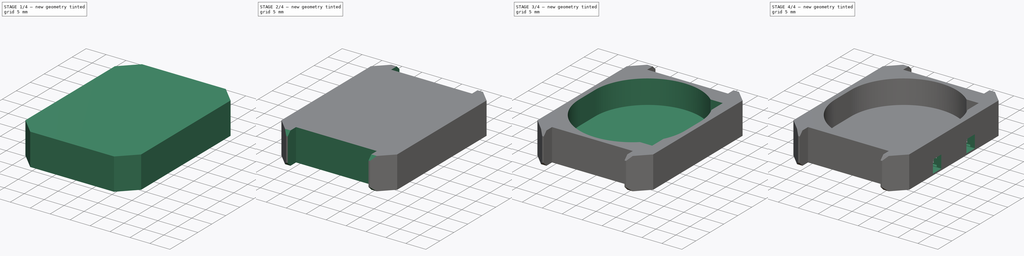
[diagram: build sequence overview — one tinted view per stage of 4, left to right]
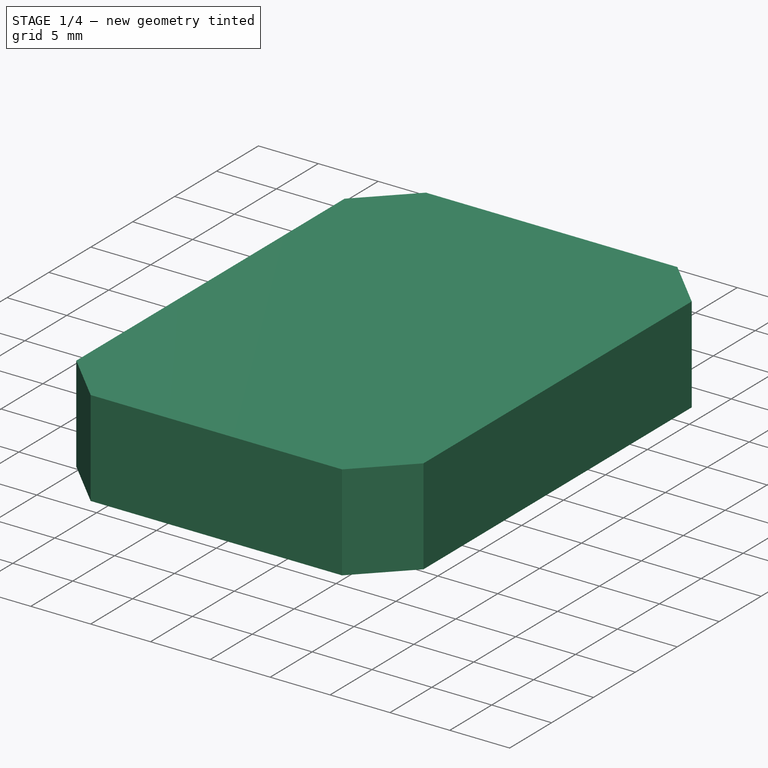
[diagram: stage 1 of 4 — iso view after this stage's code; geometry added in this stage tinted green]
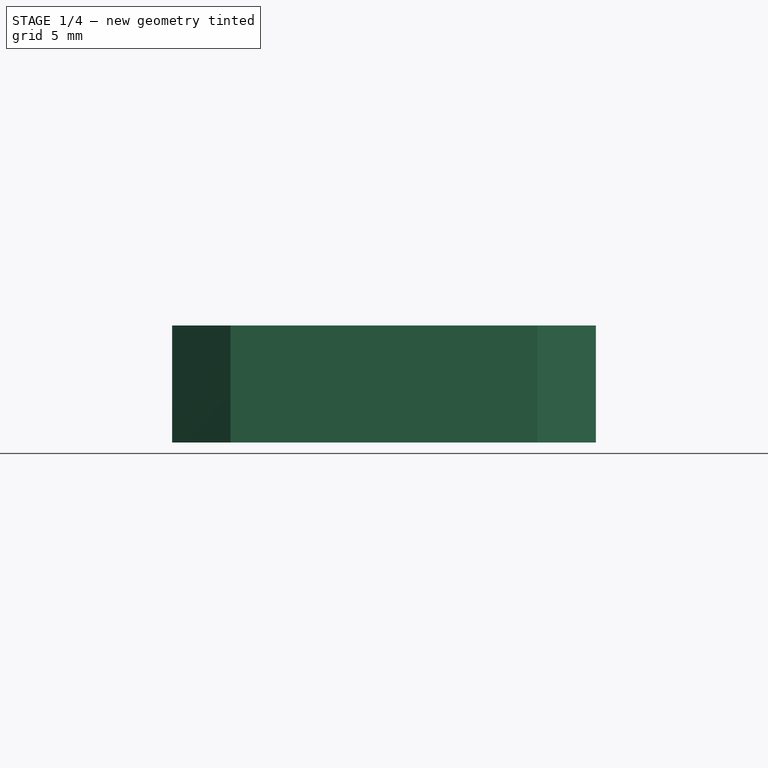
[diagram: stage 1 of 4 — front view after this stage's code; geometry added in this stage tinted green]
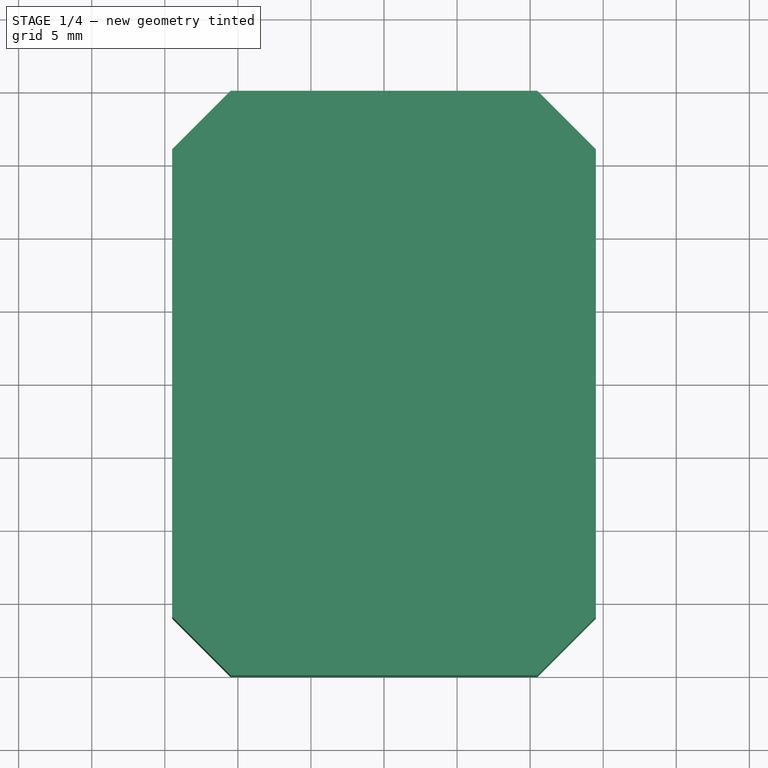
[diagram: stage 1 of 4 — top view after this stage's code; geometry added in this stage tinted green]
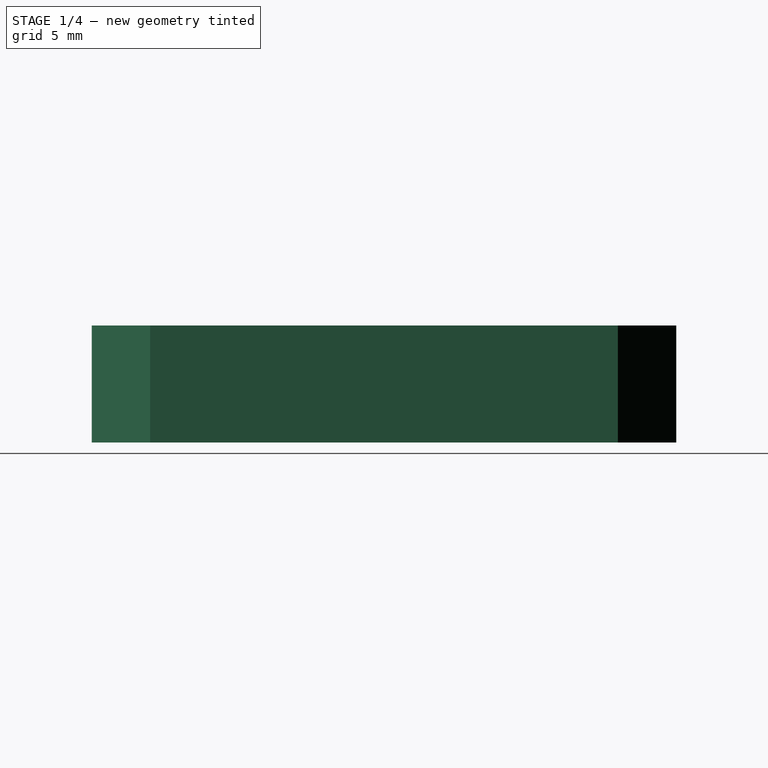
[diagram: stage 1 of 4 — right view after this stage's code; geometry added in this stage tinted green]
FCSTD DOCUMENT  (FreeCAD 1.1R20260325 (Git shallow))
Label: OutlineA3
License: All rights reserved
LicenseURL: https://en.wikipedia.org/wiki/All_rights_reserved
objects: Sketcher::SketchObject×9, PartDesign::Pocket×6, PartDesign::Chamfer×2, App::Point×1, PartDesign::Pad×1, Part::DatumPlane×1, PartDesign::Body×1
note: 46 computed .brp shape members not serialized (recipe doc carries the construction recipe); baked Part::Feature solids carry a one-line shape summary decoded from their .brp

FEATURE [App::Point] Origin001
  Role = Origin
FEATURE [Sketcher::SketchObject] Sketch
  ArcFitTolerance = 1e-06
  AttachmentSupport = -> [Origin]
  ExternalTypes = [0]
  FullyConstrained = true
  MakeInternals = false
  MapMode = 5
  _ExternalGeoVersion = 1
  sketch-geometry (11):
    g0: ArcOfCircle [constr] CenterX=0 CenterY=3 CenterZ=0 NormalX=0 NormalY=0 NormalZ=1 AngleXU=0 Radius=13 StartAngle=1e-16 EndAngle=3.14159
    g1: ArcOfCircle [constr] CenterX=0 CenterY=-3 CenterZ=0 NormalX=0 NormalY=0 NormalZ=1 AngleXU=0 Radius=13 StartAngle=3.14159 EndAngle=6.28319
    g2: LineSegment [constr] StartX=13 StartY=3 StartZ=0 EndX=13 EndY=-3 EndZ=0
    g3: LineSegment [constr] StartX=-13 StartY=3 StartZ=0 EndX=-13 EndY=-3 EndZ=0
    g4: GeomPoint X=0 Y=16 Z=0
    g5: GeomPoint X=0 Y=-16 Z=0
    g6: LineSegment StartX=-14.5 StartY=-20 StartZ=0 EndX=14.5 EndY=-20 EndZ=0
    g7: LineSegment StartX=14.5 StartY=-20 StartZ=0 EndX=14.5 EndY=20 EndZ=0
    g8: LineSegment StartX=14.5 StartY=20 StartZ=0 EndX=-14.5 EndY=20 EndZ=0
    g9: LineSegment StartX=-14.5 StartY=20 StartZ=0 EndX=-14.5 EndY=-20 EndZ=0
    g10: GeomPoint [constr] X=0 Y=0 Z=0
  constraints (25):
    c: Tangent(g0,g2) = 1.5708
    c: Tangent(g0,g3) = -1.5708
    c: Tangent(g1,g2) = 1.5708
    c: Tangent(g1,g3) = -1.5708
    c: Equal(g0,g1)
    c: Symmetric(g0,g1,g-1)
    c: PointOnObject(g0,g-2)
    c: PointOnObject(g4,g0)
    c: PointOnObject(g5,g1)
    c: PointOnObject(g4,g-2)
    c: PointOnObject(g5,g-2)
    c: DistanceY(g-1,g4) = 16
    c: DistanceX(g0,g0) = 26
    c: Coincident(g6,g7)
    c: Coincident(g7,g8)
    c: Coincident(g8,g9)
    c: Coincident(g9,g6)
    c: Horizontal(g6)
    c: Horizontal(g8)
    c: Vertical(g7)
    c: Vertical(g9)
    c: Symmetric(g8,g6,g10)
    c: Distance(g7,g9) = 29
    c: Distance(g6,g8) = 40
    c: Coincident(g10,g-1)
FEATURE [PartDesign::Pad] Pad
  Direction = (0,0,1)
  Length = 8
  Length2 = 10
  Profile = -> Sketch
  ReferenceAxis = -> Sketch [N_Axis]
  Refine = true
  SideType = 0
  Suppressed = false
  Type = 0
  Type2 = 0
FEATURE [PartDesign::Chamfer] Chamfer
  Angle = 45
  Base = -> Pad [Edge5,Edge2,Edge8,Edge1]
  BaseFeature = -> Pad
  ChamferType = 0
  FlipDirection = false
  Refine = true
  Size = 4
  Size2 = 1
  SupportTransform = false
  Suppressed = false
  UseAllEdges = false
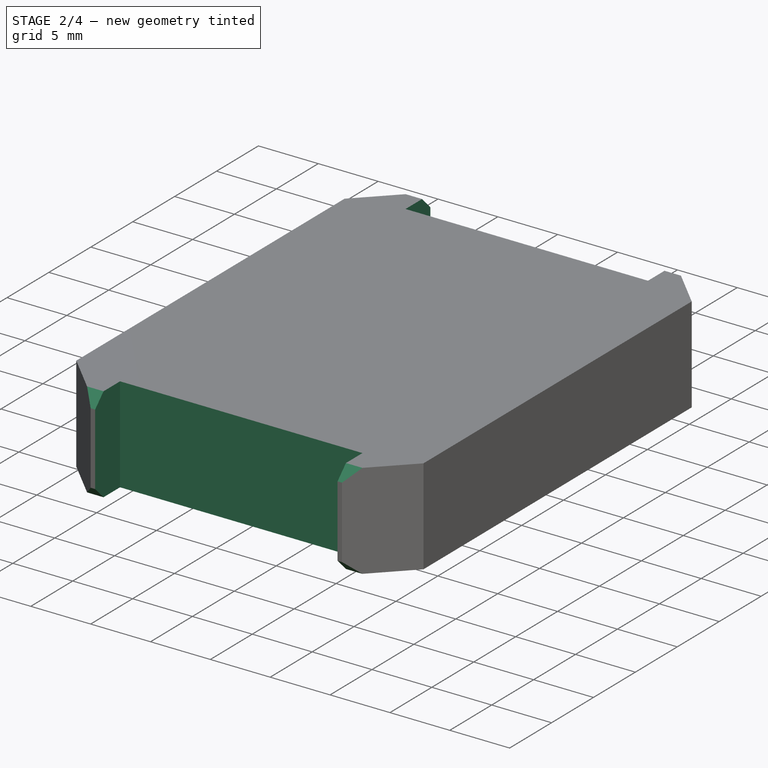
[diagram: stage 2 of 4 — iso view after this stage's code; geometry added in this stage tinted green]
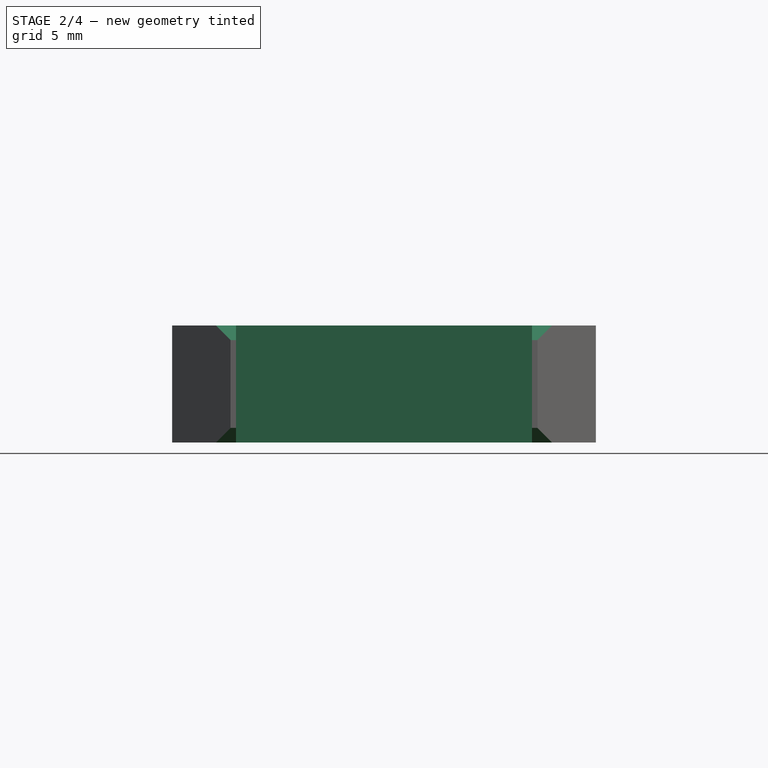
[diagram: stage 2 of 4 — front view after this stage's code; geometry added in this stage tinted green]
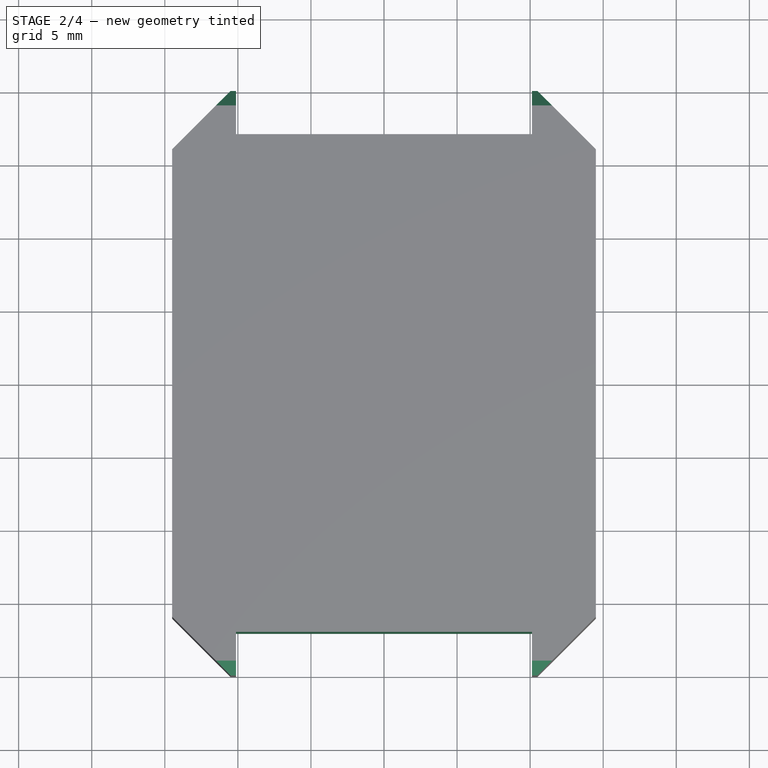
[diagram: stage 2 of 4 — top view after this stage's code; geometry added in this stage tinted green]
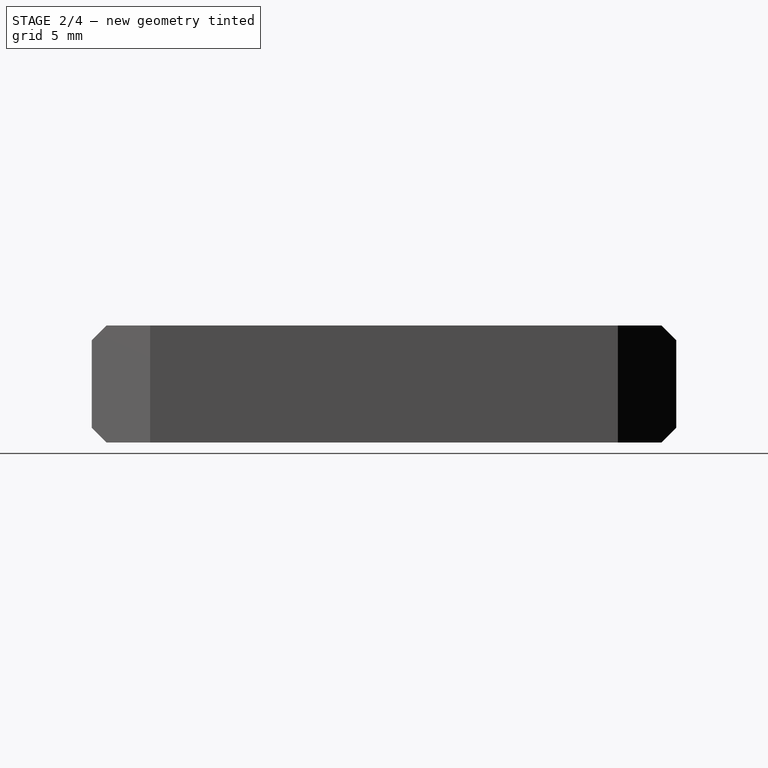
[diagram: stage 2 of 4 — right view after this stage's code; geometry added in this stage tinted green]
FEATURE [PartDesign::Chamfer] Chamfer001
  Angle = 45
  Base = -> Chamfer [Edge1,Edge4,Edge11,Edge20]
  BaseFeature = -> Chamfer
  ChamferType = 0
  FlipDirection = false
  Refine = true
  Size = 1
  Size2 = 1
  SupportTransform = false
  Suppressed = false
  UseAllEdges = false
FEATURE [Sketcher::SketchObject] Sketch001
  ArcFitTolerance = 1e-06
  AttachmentSupport = -> [Chamfer001]
  ExternalTypes = [0]
  FullyConstrained = false
  MakeInternals = false
  MapMode = 5
  Placement = pos=(0,0,8) rot=(0,0,1;0rad)
  _ExternalGeoVersion = 1
  sketch-geometry (10):
    g0: LineSegment StartX=-10.125 StartY=-37.0317 StartZ=0 EndX=10.125 EndY=-37.0317 EndZ=0
    g1: LineSegment StartX=10.125 StartY=-37.0317 StartZ=0 EndX=10.125 EndY=-17.0317 EndZ=0
    g2: LineSegment StartX=10.125 StartY=-17.0317 StartZ=0 EndX=-10.125 EndY=-17.0317 EndZ=0
    g3: LineSegment StartX=-10.125 StartY=-17.0317 StartZ=0 EndX=-10.125 EndY=-37.0317 EndZ=0
    g4: GeomPoint [constr] X=0 Y=-27.0317 Z=0
    g5: LineSegment StartX=-10.125 StartY=37.0317 StartZ=0 EndX=10.125 EndY=37.0317 EndZ=0
    g6: LineSegment StartX=10.125 StartY=37.0317 StartZ=0 EndX=10.125 EndY=17.0317 EndZ=0
    g7: LineSegment StartX=10.125 StartY=17.0317 StartZ=0 EndX=-10.125 EndY=17.0317 EndZ=0
    g8: LineSegment StartX=-10.125 StartY=17.0317 StartZ=0 EndX=-10.125 EndY=37.0317 EndZ=0
    g9: GeomPoint [constr] X=0 Y=27.0317 Z=0
  constraints (24):
    c: Coincident(g0,g1)
    c: Coincident(g1,g2)
    c: Coincident(g2,g3)
    c: Coincident(g3,g0)
    c: Horizontal(g0)
    c: Horizontal(g2)
    c: Vertical(g1)
    c: Vertical(g3)
    c: Symmetric(g2,g0,g4)
    c: Distance(g1,g3) = 20.25
    c: Distance(g0,g2) = 20
    c: PointOnObject(g4,g-2)
    c: Coincident(g5,g6)
    c: Coincident(g6,g7)
    c: Coincident(g7,g8)
    c: Coincident(g8,g5)
    c: Horizontal(g5)
    c: Horizontal(g7)
    c: Vertical(g6)
    c: Vertical(g8)
    c: Symmetric(g7,g5,g9)
    c: Distance(g6,g8) = 20.25
    c: Distance(g5,g7) = 20
    c: Symmetric(g9,g4,g-1)
FEATURE [PartDesign::Pocket] Pocket
  BaseFeature = -> Chamfer001
  Direction = (0,0,-1)
  Length = 15
  Length2 = 5
  Profile = -> Sketch001
  ReferenceAxis = -> Sketch001 [N_Axis]
  Refine = true
  SideType = 0
  Suppressed = false
  Type = 0
  Type2 = 0
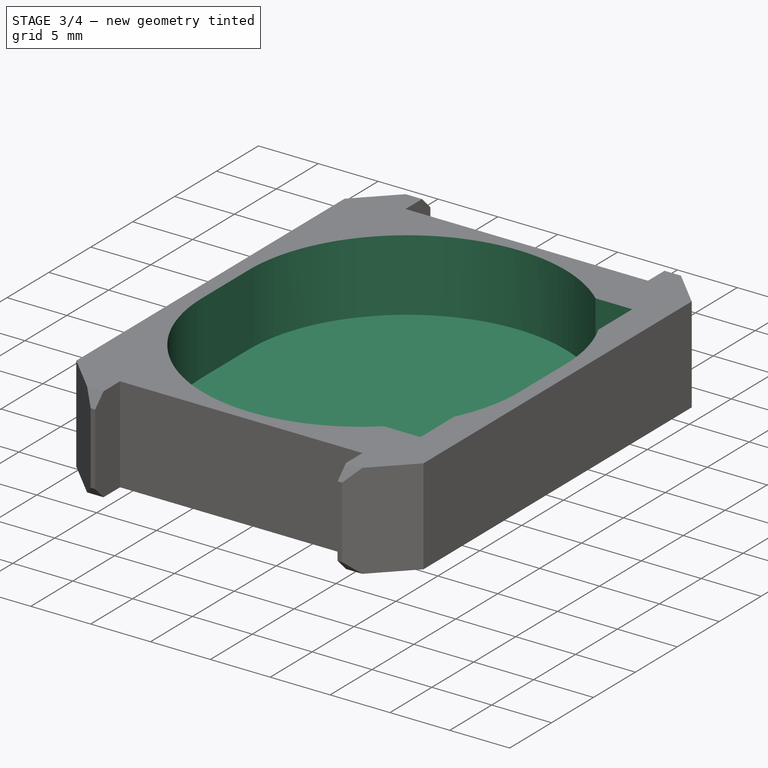
[diagram: stage 3 of 4 — iso view after this stage's code; geometry added in this stage tinted green]
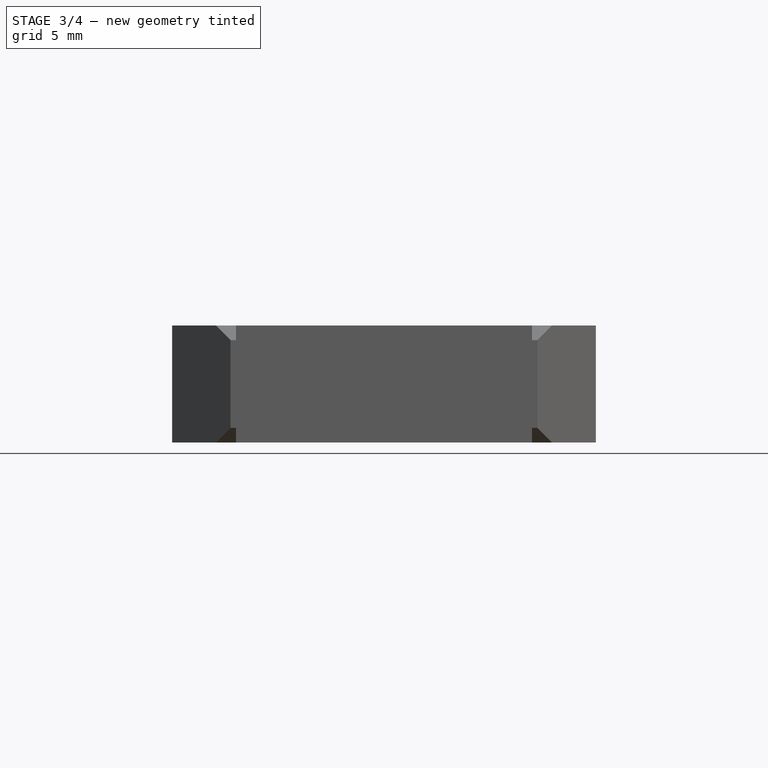
[diagram: stage 3 of 4 — front view after this stage's code; geometry added in this stage tinted green]
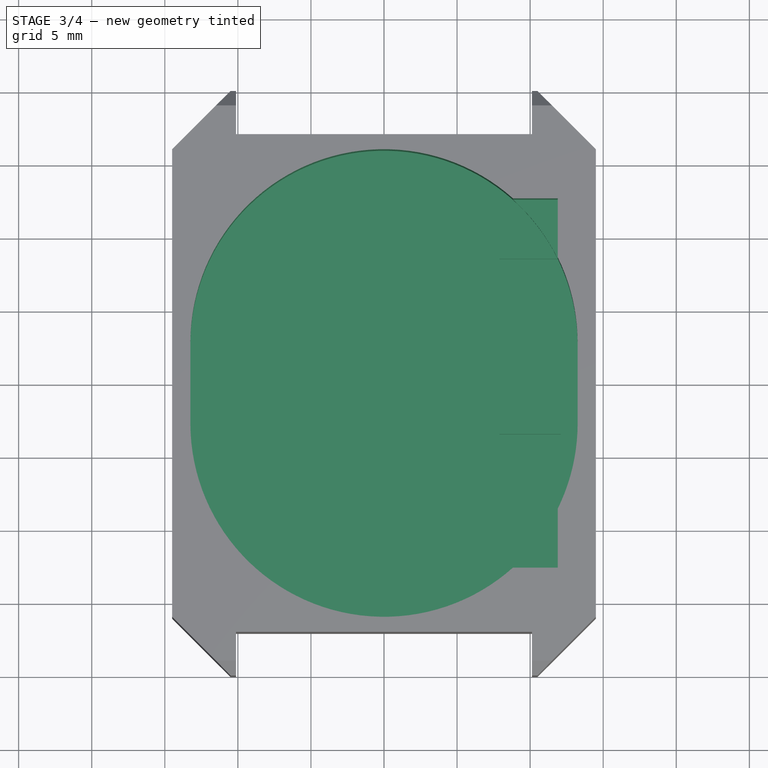
[diagram: stage 3 of 4 — top view after this stage's code; geometry added in this stage tinted green]
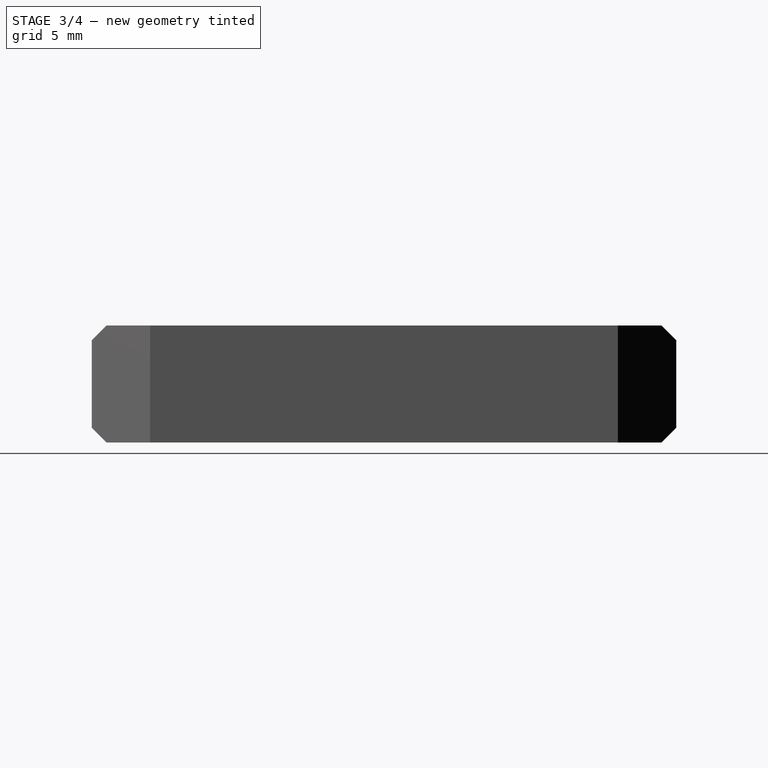
[diagram: stage 3 of 4 — right view after this stage's code; geometry added in this stage tinted green]
FEATURE [Sketcher::SketchObject] Sketch002
  ArcFitTolerance = 1e-06
  AttachmentSupport = -> [Pocket]
  ExternalTypes = [0]
  FullyConstrained = true
  MakeInternals = false
  MapMode = 5
  Placement = pos=(0,0,8) rot=(0,0,1;0rad)
  _ExternalGeoVersion = 1
  sketch-geometry (5):
    g0: ArcOfCircle CenterX=0 CenterY=2.75 CenterZ=0 NormalX=0 NormalY=0 NormalZ=1 AngleXU=0 Radius=13.25 StartAngle=-1.537e-13 EndAngle=3.14159
    g1: ArcOfCircle CenterX=0 CenterY=-2.75 CenterZ=0 NormalX=0 NormalY=0 NormalZ=1 AngleXU=0 Radius=13.25 StartAngle=3.14159 EndAngle=6.28319
    g2: LineSegment StartX=13.25 StartY=2.75 StartZ=0 EndX=13.25 EndY=-2.75 EndZ=0
    g3: LineSegment StartX=-13.25 StartY=2.75 StartZ=0 EndX=-13.25 EndY=-2.75 EndZ=0
    g4: GeomPoint X=0 Y=16 Z=0
  constraints (11):
    c: Tangent(g0,g2) = 1.5708
    c: Tangent(g0,g3) = -1.5708
    c: Tangent(g1,g2) = 1.5708
    c: Tangent(g1,g3) = -1.5708
    c: Equal(g0,g1)
    c: Symmetric(g0,g1,g-1)
    c: PointOnObject(g4,g0)
    c: Vertical(g4,g0)
    c: DistanceX(g0,g0) = 26.5
    c: Distance(g4,g-1) = 16
    c: PointOnObject(g4,g-2)
FEATURE [PartDesign::Pocket] Pocket001
  BaseFeature = -> Pocket
  Direction = (0,0,-1)
  Length = 6
  Length2 = 5
  Profile = -> Sketch002
  ReferenceAxis = -> Sketch002 [N_Axis]
  Refine = true
  SideType = 0
  Suppressed = false
  Type = 0
  Type2 = 0
FEATURE [Sketcher::SketchObject] Sketch003
  ArcFitTolerance = 1e-06
  AttachmentSupport = -> [Pocket001]
  ExternalGeometry = -> [Pocket001]
  ExternalTypes = [0,0]
  FullyConstrained = false
  MakeInternals = false
  MapMode = 5
  Placement = pos=(0,0,8) rot=(0,0,1;0rad)
  _ExternalGeoVersion = 1
  sketch-geometry (5):
    g0: LineSegment StartX=-5.70489 StartY=-12.6332 StartZ=0 EndX=11.8888 EndY=-12.6332 EndZ=0
    g1: LineSegment StartX=11.8888 StartY=-12.6332 StartZ=0 EndX=11.8888 EndY=12.6332 EndZ=0
    g2: LineSegment StartX=11.8888 StartY=12.6332 StartZ=0 EndX=-5.70489 EndY=12.6332 EndZ=0
    g3: LineSegment StartX=-5.70489 StartY=12.6332 StartZ=0 EndX=-5.70489 EndY=-12.6332 EndZ=0
    g4: GeomPoint [constr] X=3.09196 Y=0 Z=0
  constraints (10):
    c: Coincident(g0,g1)
    c: Coincident(g1,g2)
    c: Coincident(g2,g3)
    c: Coincident(g3,g0)
    c: Horizontal(g0)
    c: Horizontal(g2)
    c: Vertical(g1)
    c: Vertical(g3)
    c: Symmetric(g2,g0,g4)
    c: PointOnObject(g4,g-1)
FEATURE [PartDesign::Pocket] Pocket002
  BaseFeature = -> Pocket001
  Direction = (0,0,-1)
  Length = 5
  Length2 = 5
  Profile = -> Sketch003
  ReferenceAxis = -> Sketch003 [N_Axis]
  Refine = true
  SideType = 0
  Suppressed = false
  Type = 0
  Type2 = 0
FEATURE [Sketcher::SketchObject] Sketch004
  ArcFitTolerance = 1e-06
  AttachmentSupport = -> [Pocket002]
  ExternalGeometry = -> [Pocket002]
  ExternalTypes = [0]
  FullyConstrained = false
  MakeInternals = false
  MapMode = 5
  Placement = pos=(0,0,2) rot=(0,0,1;0rad)
  _ExternalGeoVersion = 1
  sketch-geometry (12):
    g0: LineSegment [constr] StartX=10 StartY=16.8719 StartZ=0 EndX=10 EndY=-16.8719 EndZ=0
    g1: GeomPoint [constr] X=10 Y=0 Z=0
    g2: LineSegment StartX=7.9 StartY=-8.6 StartZ=0 EndX=12.1 EndY=-8.6 EndZ=0
    g3: LineSegment StartX=12.1 StartY=-8.6 StartZ=0 EndX=12.1 EndY=-3.4 EndZ=0
    g4: LineSegment StartX=12.1 StartY=-3.4 StartZ=0 EndX=7.9 EndY=-3.4 EndZ=0
    g5: LineSegment StartX=7.9 StartY=-3.4 StartZ=0 EndX=7.9 EndY=-8.6 EndZ=0
    g6: GeomPoint [constr] X=10 Y=-6 Z=0
    g7: LineSegment StartX=7.9 StartY=8.6 StartZ=0 EndX=12.1 EndY=8.6 EndZ=0
    g8: LineSegment StartX=12.1 StartY=8.6 StartZ=0 EndX=12.1 EndY=3.4 EndZ=0
    g9: LineSegment StartX=12.1 StartY=3.4 StartZ=0 EndX=7.9 EndY=3.4 EndZ=0
    g10: LineSegment StartX=7.9 StartY=3.4 StartZ=0 EndX=7.9 EndY=8.6 EndZ=0
    g11: GeomPoint [constr] X=10 Y=6 Z=0
  constraints (29):
    c: Vertical(g0)
    c: Symmetric(g0,g0,g1)
    c: PointOnObject(g1,g-1)
    c: DistanceX(g-1,g1) = 10
    c: Coincident(g2,g3)
    c: Coincident(g3,g4)
    c: Coincident(g4,g5)
    c: Coincident(g5,g2)
    c: Horizontal(g2)
    c: Horizontal(g4)
    c: Vertical(g3)
    c: Vertical(g5)
    c: Symmetric(g4,g2,g6)
    c: Distance(g3,g5) = 4.2
    c: Distance(g2,g4) = 5.2
    c: PointOnObject(g6,g0)
    c: Coincident(g7,g8)
    c: Coincident(g8,g9)
    c: Coincident(g9,g10)
    c: Coincident(g10,g7)
    c: Horizontal(g7)
    c: Horizontal(g9)
    c: Vertical(g8)
    c: Vertical(g10)
    c: Symmetric(g9,g7,g11)
    c: Distance(g8,g10) = 4.2
    c: Distance(g7,g9) = 5.2
    c: Symmetric(g6,g11,g-1)
    c: Distance(g11,g-1) = 6
FEATURE [PartDesign::Pocket] Pocket003
  BaseFeature = -> Pocket002
  Direction = (0,0,-1)
  Length = 1.2
  Length2 = 5
  Profile = -> Sketch004
  ReferenceAxis = -> Sketch004 [N_Axis]
  Refine = true
  SideType = 0
  Suppressed = false
  Type = 0
  Type2 = 0
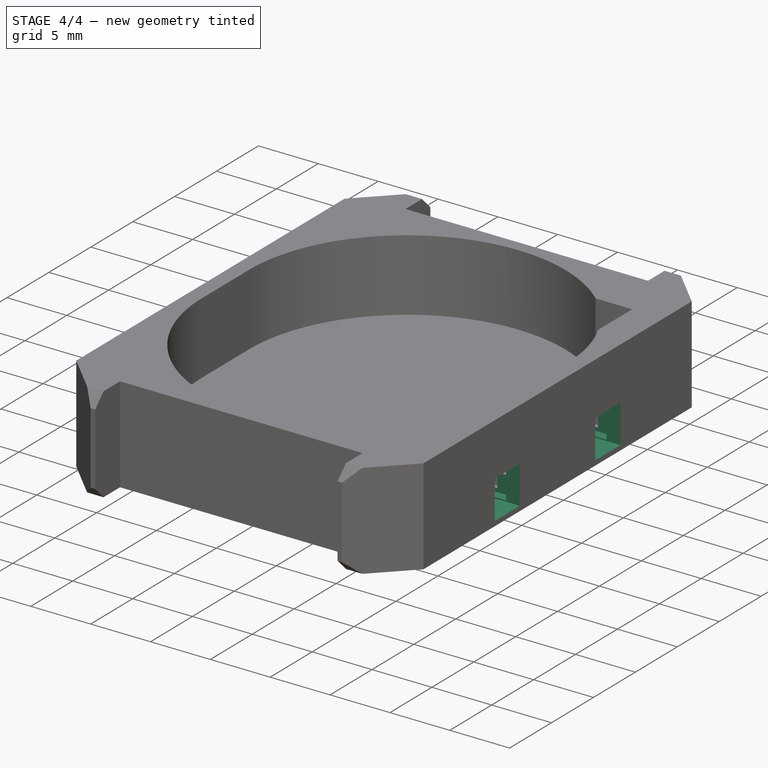
[diagram: stage 4 of 4 — iso view after this stage's code; geometry added in this stage tinted green]
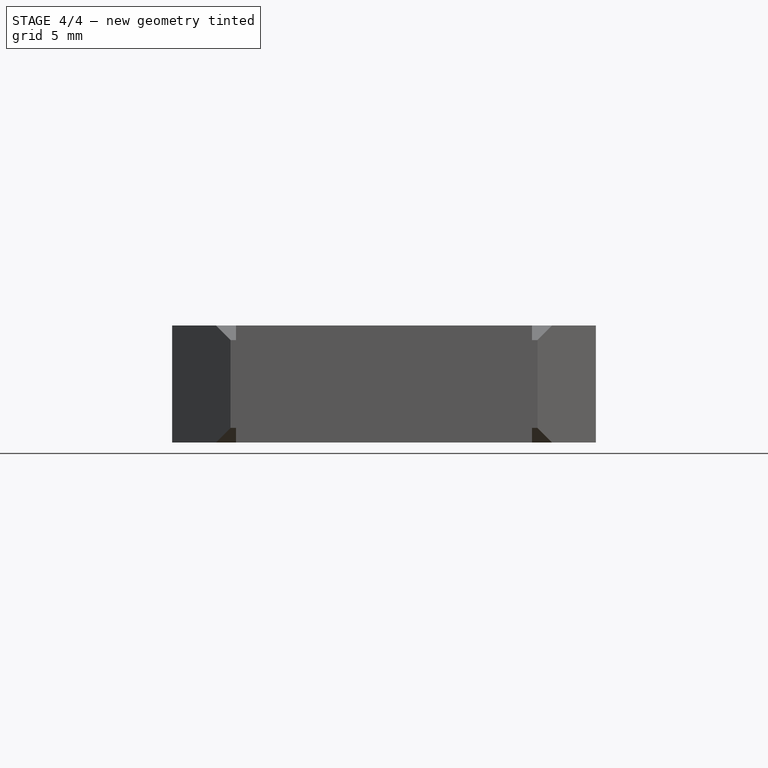
[diagram: stage 4 of 4 — front view after this stage's code; geometry added in this stage tinted green]
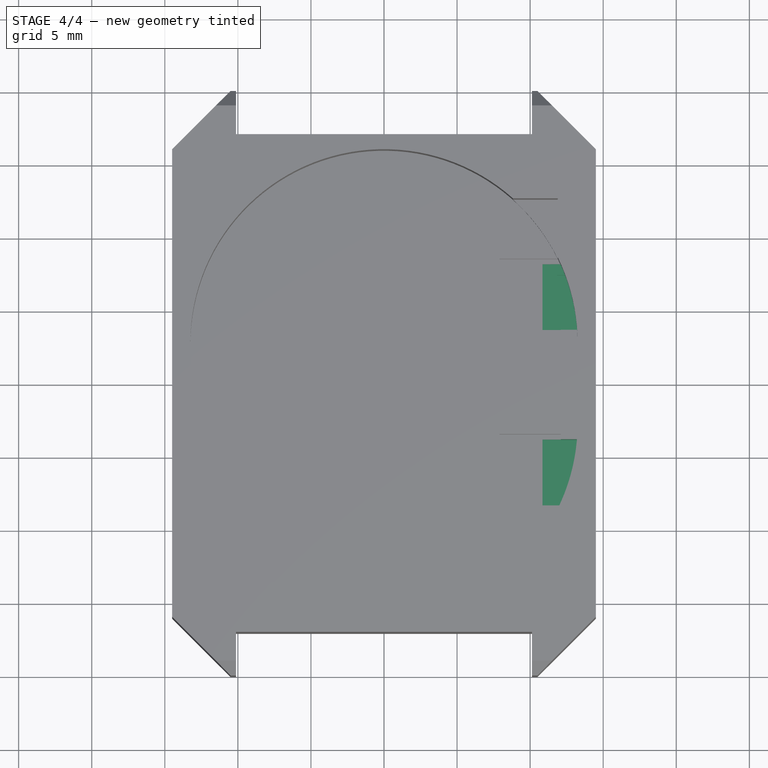
[diagram: stage 4 of 4 — top view after this stage's code; geometry added in this stage tinted green]
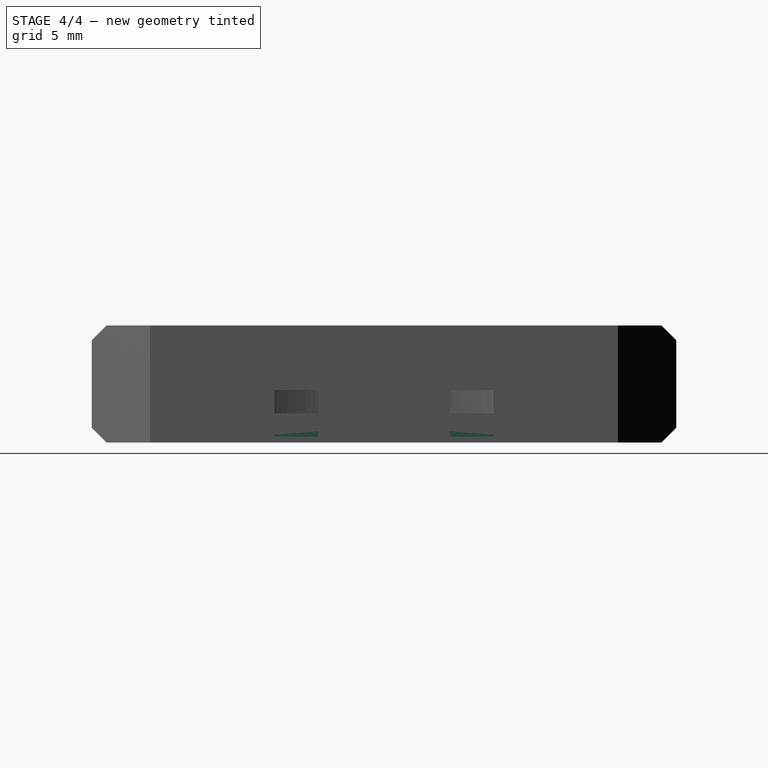
[diagram: stage 4 of 4 — right view after this stage's code; geometry added in this stage tinted green]
FEATURE [Part::DatumPlane] DatumPlane
  AttachmentOffset = pos=(0,0,3) rot=(0,0,1;0rad)
  AttachmentSupport = -> [Pocket003]
  MapMode = 5
  Placement = pos=(0,0,5) rot=(0,0,1;0rad)
FEATURE [Sketcher::SketchObject] Sketch005
  ArcFitTolerance = 1e-06
  AttachmentSupport = -> [DatumPlane]
  ExternalGeometry = -> [Pocket003]
  ExternalTypes = [0,0]
  FullyConstrained = false
  MakeInternals = false
  MapMode = 5
  Placement = pos=(0,0,5) rot=(0,0,1;0rad)
  _ExternalGeoVersion = 1
  sketch-geometry (12):
    g0: LineSegment [constr] StartX=7.9 StartY=6 StartZ=0 EndX=21.123 EndY=6 EndZ=0
    g1: LineSegment [constr] StartX=7.9 StartY=-6 StartZ=0 EndX=21.7693 EndY=-6 EndZ=0
    g2: LineSegment StartX=10.85 StartY=3.75 StartZ=0 EndX=13.35 EndY=3.75 EndZ=0
    g3: LineSegment StartX=13.35 StartY=3.75 StartZ=0 EndX=13.35 EndY=8.25 EndZ=0
    g4: LineSegment StartX=13.35 StartY=8.25 StartZ=0 EndX=10.85 EndY=8.25 EndZ=0
    g5: LineSegment StartX=10.85 StartY=8.25 StartZ=0 EndX=10.85 EndY=3.75 EndZ=0
    g6: GeomPoint [constr] X=12.1 Y=6 Z=0
    g7: LineSegment StartX=10.85 StartY=-8.25 StartZ=0 EndX=10.85 EndY=-3.75 EndZ=0
    g8: LineSegment StartX=13.35 StartY=-8.25 StartZ=0 EndX=10.85 EndY=-8.25 EndZ=0
    g9: LineSegment StartX=13.35 StartY=-3.75 StartZ=0 EndX=13.35 EndY=-8.25 EndZ=0
    g10: LineSegment StartX=10.85 StartY=-3.75 StartZ=0 EndX=13.35 EndY=-3.75 EndZ=0
    g11: GeomPoint [constr] X=12.1 Y=-6 Z=0
  constraints (29):
    c: Symmetric(g-3,g-3,g0)
    c: Horizontal(g0)
    c: Symmetric(g-4,g-4,g1)
    c: Horizontal(g1)
    c: Coincident(g2,g3)
    c: Coincident(g3,g4)
    c: Coincident(g4,g5)
    c: Coincident(g5,g2)
    c: Horizontal(g2)
    c: Horizontal(g4)
    c: Vertical(g3)
    c: Vertical(g5)
    c: Symmetric(g4,g2,g6)
    c: Distance(g3,g5) = 2.5
    c: Distance(g2,g4) = 4.5
    c: PointOnObject(g6,g0)
    c: Distance(g6,g-3) = 4.2
    c: Coincident(g10,g9)
    c: Coincident(g9,g8)
    c: Coincident(g8,g7)
    c: Coincident(g7,g10)
    c: Horizontal(g10)
    c: Horizontal(g8)
    c: Vertical(g9)
    c: Vertical(g7)
    c: Symmetric(g8,g10,g11)
    c: Distance(g9,g7) = 2.5
    c: Distance(g10,g8) = 4.5
    c: Symmetric(g11,g6,g-1)
FEATURE [PartDesign::Pocket] Pocket004
  BaseFeature = -> Pocket003
  Direction = (0,0,-1)
  Length = 4.5
  Length2 = 5
  Profile = -> Sketch005
  ReferenceAxis = -> Sketch005 [N_Axis]
  Refine = true
  SideType = 0
  Suppressed = false
  Type = 0
  Type2 = 0
FEATURE [Sketcher::SketchObject] Sketch006
  ArcFitTolerance = 1e-06
  AttachmentSupport = -> [Pocket004]
  ExternalGeometry = -> [Pocket004]
  ExternalTypes = [0,0]
  FullyConstrained = false
  MakeInternals = false
  MapMode = 5
  Placement = pos=(0,0,2) rot=(0,0,1;0rad)
  _ExternalGeoVersion = 1
  sketch-geometry (12):
    g0: LineSegment [constr] StartX=13.35 StartY=6 StartZ=0 EndX=8.11754 EndY=6 EndZ=0
    g1: LineSegment [constr] StartX=13.35 StartY=-6 StartZ=0 EndX=8.01459 EndY=-6 EndZ=0
    g2: LineSegment StartX=11.85 StartY=4.5 StartZ=0 EndX=14.85 EndY=4.5 EndZ=0
    g3: LineSegment StartX=14.85 StartY=4.5 StartZ=0 EndX=14.85 EndY=7.5 EndZ=0
    g4: LineSegment StartX=14.85 StartY=7.5 StartZ=0 EndX=11.85 EndY=7.5 EndZ=0
    g5: LineSegment StartX=11.85 StartY=7.5 StartZ=0 EndX=11.85 EndY=4.5 EndZ=0
    g6: GeomPoint [constr] X=13.35 Y=6 Z=0
    g7: LineSegment StartX=11.85 StartY=-4.5 StartZ=0 EndX=14.85 EndY=-4.5 EndZ=0
    g8: LineSegment StartX=14.85 StartY=-4.5 StartZ=0 EndX=14.85 EndY=-7.5 EndZ=0
    g9: LineSegment StartX=14.85 StartY=-7.5 StartZ=0 EndX=11.85 EndY=-7.5 EndZ=0
    g10: LineSegment StartX=11.85 StartY=-7.5 StartZ=0 EndX=11.85 EndY=-4.5 EndZ=0
    g11: GeomPoint [constr] X=13.35 Y=-6 Z=0
  constraints (27):
    c: Symmetric(g-3,g-3,g0)
    c: Horizontal(g0)
    c: Symmetric(g-4,g-4,g1)
    c: Horizontal(g1)
    c: Coincident(g2,g3)
    c: Coincident(g3,g4)
    c: Coincident(g4,g5)
    c: Coincident(g5,g2)
    c: Horizontal(g2)
    c: Horizontal(g4)
    c: Vertical(g3)
    c: Vertical(g5)
    c: Symmetric(g4,g2,g6)
    c: Distance(g3,g5) = 3
    c: Distance(g2,g4) = 3
    c: Coincident(g6,g0)
    c: Coincident(g7,g8)
    c: Coincident(g8,g9)
    c: Coincident(g9,g10)
    c: Coincident(g10,g7)
    c: Horizontal(g7)
    c: Horizontal(g9)
    c: Vertical(g8)
    c: Vertical(g10)
    c: Symmetric(g9,g7,g11)
    c: Distance(g8,g10) = 3
    c: Distance(g7,g9) = 3
FEATURE [PartDesign::Pocket] Pocket005
  BaseFeature = -> Pocket004
  Direction = (0,0,-1)
  Length = 3.2
  Length2 = 5
  Profile = -> Sketch006
  ReferenceAxis = -> Sketch006 [N_Axis]
  Refine = true
  SideType = 2
  Suppressed = false
  Type = 0
  Type2 = 0
FEATURE [Sketcher::SketchObject] Sketch007
  ArcFitTolerance = 1e-06
  AttachmentSupport = -> [Pocket005]
  ExternalTypes = [0]
  FullyConstrained = true
  MakeInternals = false
  MapMode = 5
  Placement = pos=(10.125,0,0) rot=(0.57735,-0.57735,-0.57735;2.0944rad)
  _ExternalGeoVersion = 1
FEATURE [Sketcher::SketchObject] Sketch008
  ArcFitTolerance = 1e-06
  AttachmentSupport = -> [Pocket005]
  ExternalGeometry = -> [Pocket005]
  ExternalTypes = [0]
  FullyConstrained = false
  MakeInternals = false
  MapMode = 5
  Placement = pos=(0,0,8) rot=(0,0,1;0rad)
  _ExternalGeoVersion = 1
  sketch-geometry (8):
    g0: LineSegment [constr] StartX=-13.25 StartY=2.75 StartZ=0 EndX=-13.25 EndY=15.9766 EndZ=0
    g1: LineSegment [constr] StartX=-13.25 StartY=-2.75 StartZ=0 EndX=-13.25 EndY=-16.9624 EndZ=0
    g2: LineSegment [constr] StartX=0 StartY=-15.5968 StartZ=0 EndX=-13.25 EndY=-15.5968 EndZ=0
    g3: LineSegment StartX=-2.95 StartY=-9.79682 StartZ=0 EndX=2.05 EndY=-9.79682 EndZ=0
    g4: LineSegment StartX=2.05 StartY=-9.79682 StartZ=0 EndX=2.05 EndY=-1.79682 EndZ=0
    g5: LineSegment StartX=2.05 StartY=-1.79682 StartZ=0 EndX=-2.95 EndY=-1.79682 EndZ=0
    g6: LineSegment StartX=-2.95 StartY=-1.79682 StartZ=0 EndX=-2.95 EndY=-9.79682 EndZ=0
    g7: GeomPoint [constr] X=-0.45 Y=-5.79682 Z=0
  constraints (20):
    c: Coincident(g0,g-3)
    c: Vertical(g0)
    c: Coincident(g1,g-3)
    c: Vertical(g1)
    c: PointOnObject(g2,g-2)
    c: PointOnObject(g2,g1)
    c: Horizontal(g2)
    c: Coincident(g3,g4)
    c: Coincident(g4,g5)
    c: Coincident(g5,g6)
    c: Coincident(g6,g3)
    c: Horizontal(g3)
    c: Horizontal(g5)
    c: Vertical(g4)
    c: Vertical(g6)
    c: Symmetric(g5,g3,g7)
    c: Distance(g4,g6) = 5
    c: Distance(g3,g5) = 8
    c: Distance(g7,g1) = 12.8
    c: Distance(g7,g2) = 9.8
FEATURE [PartDesign::Body] Body
  AllowCompound = true
  Group = -> [Sketch,Pad,Chamfer,Chamfer001,Sketch001,Pocket,Sketch002,Pocket001,Sketch003,Pocket002,Sketch004,Pocket003,DatumPlane,Sketch005,Pocket004,Sketch006,Pocket005,Sketch007,Sketch008]
  Origin = -> Origin
  Tip = -> Pocket005
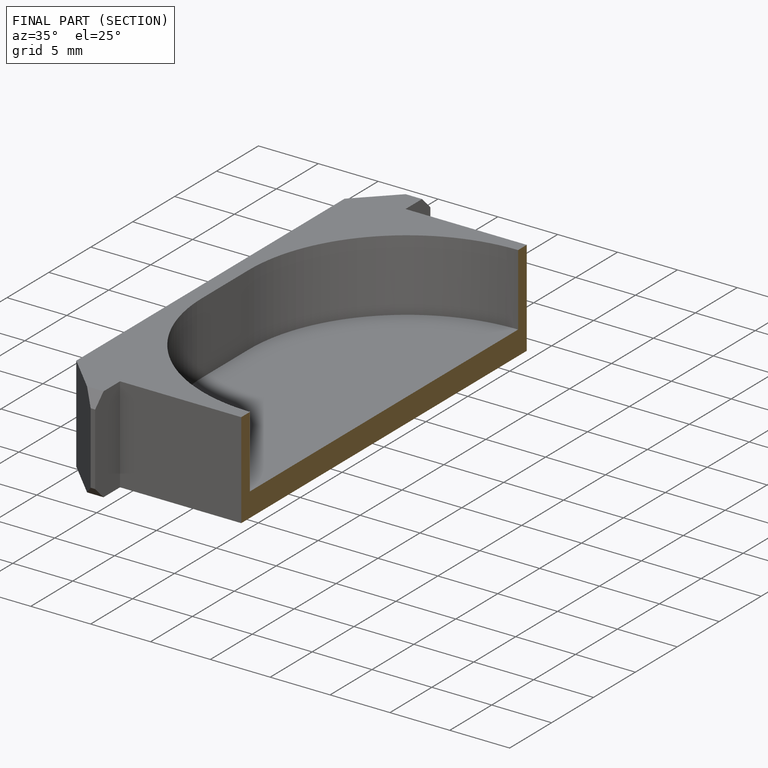
[diagram: finished part — half-section view (interior)]
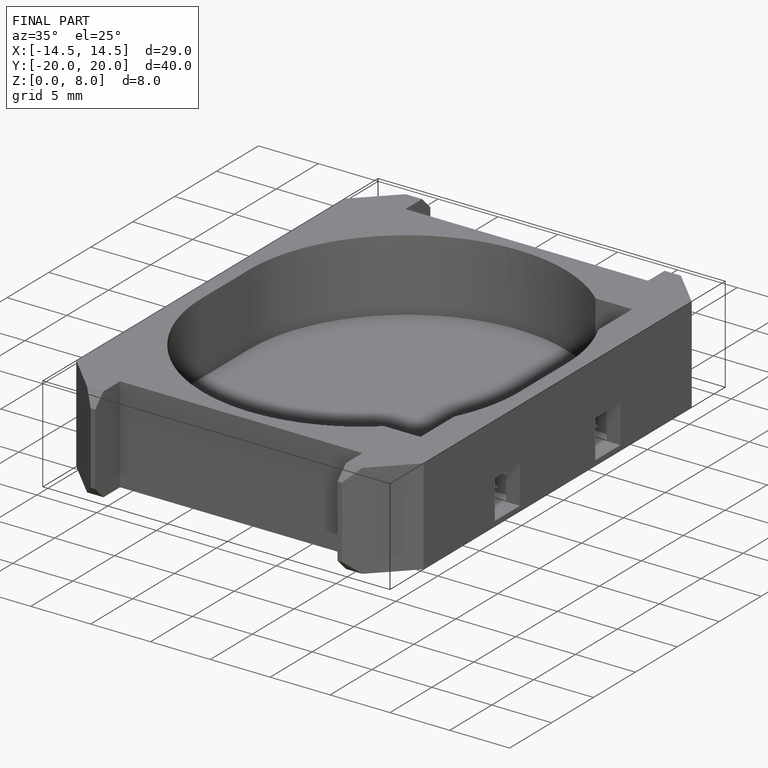
[diagram: finished part — iso view with bounding-box wireframe]
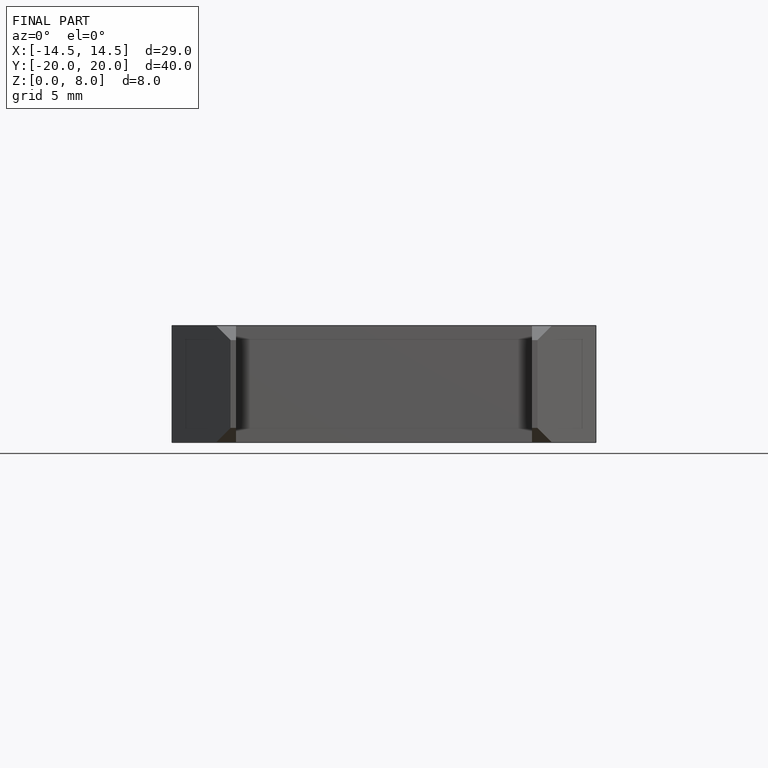
[diagram: finished part — front view with bounding-box wireframe]
